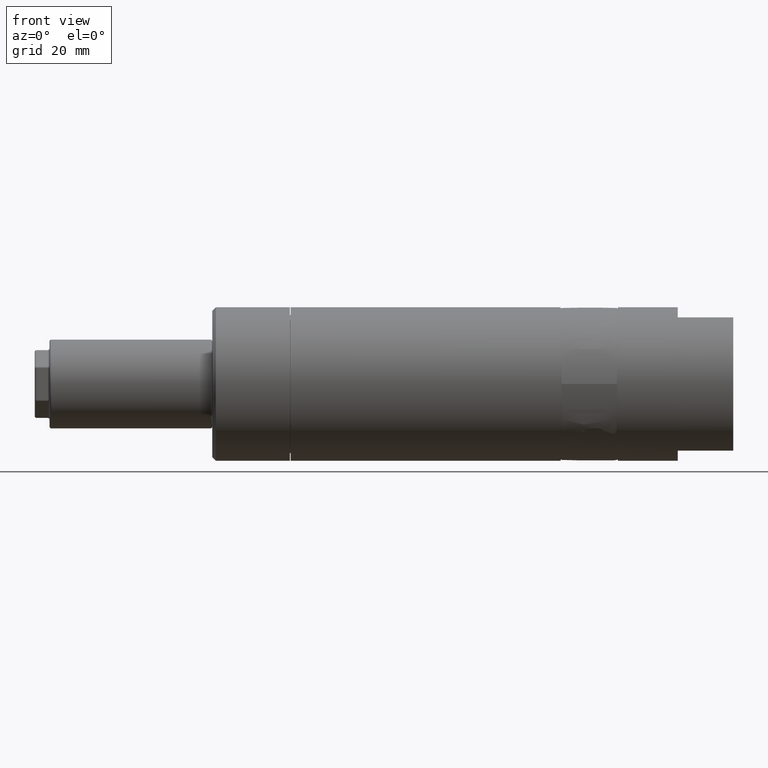
[diagram: clean part render]
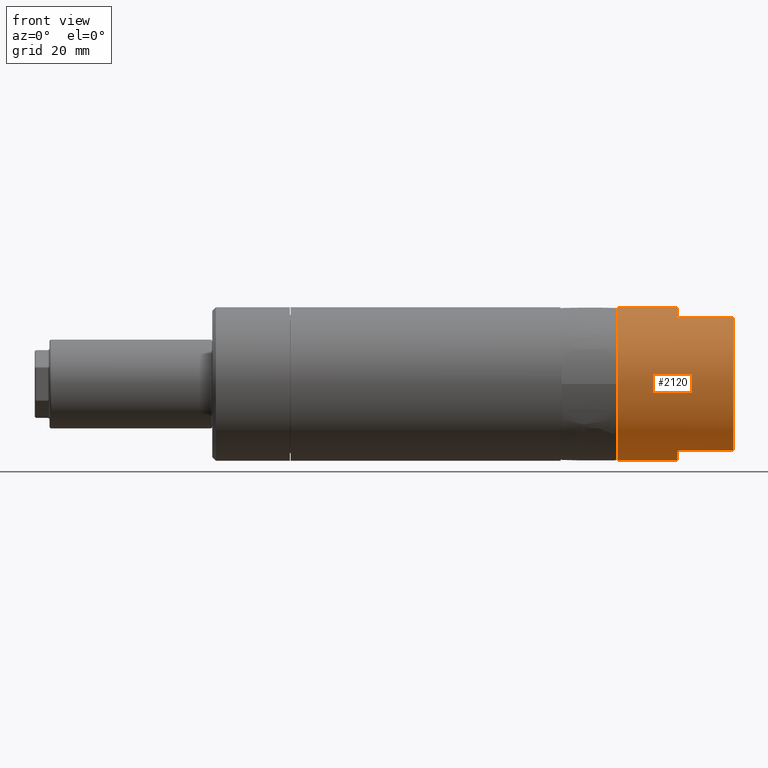
[diagram: same view with one face highlighted and labeled with its STEP entity id]
A machine part, front view. The second image highlights one B-rep face of the part: STEP entity #2120.
In plain terms, the highlighted cylindrical surface (partial cylindrical patch) has radius 20.75 mm, axis along (1, 0, 0).
Its self-contained STEP definition (entity closure, byte-faithful):
#207 = VERTEX_POINT ( 'NONE', #6639 ) ;
#294 = CARTESIAN_POINT ( 'NONE',  ( 0.0000000000000000000, -10.32291141103128000, 18.00000000000000000 ) ) ;
#388 = CARTESIAN_POINT ( 'NONE',  ( -15.00000000000000000, 0.0000000000000000000, -20.75000000000000000 ) ) ;
#656 = EDGE_CURVE ( 'NONE', #1961, #207, #5594, .T. ) ;
#677 = CARTESIAN_POINT ( 'NONE',  ( 0.0000000000000000000, 0.0000000000000000000, -20.75000000000000000 ) ) ;
#751 = DIRECTION ( 'NONE',  ( 1.000000000000000000, 0.0000000000000000000, 0.0000000000000000000 ) ) ;
#801 = EDGE_LOOP ( 'NONE', ( #10159, #3599, #3456, #2877, #8012, #6029, #17627, #15736 ) ) ;
#1194 = CARTESIAN_POINT ( 'NONE',  ( -31.19999999999999900, 2.541142108230757900E-015, 20.75000000000000000 ) ) ;
#1614 = AXIS2_PLACEMENT_3D ( 'NONE', #17934, #4783, #15066 ) ;
#1694 = CARTESIAN_POINT ( 'NONE',  ( -15.00000000000000000, 0.0000000000000000000, 0.0000000000000000000 ) ) ;
#1750 = DIRECTION ( 'NONE',  ( -1.000000000000000000, -0.0000000000000000000, -0.0000000000000000000 ) ) ;
#1763 = CARTESIAN_POINT ( 'NONE',  ( 0.0000000000000000000, 0.0000000000000000000, 0.0000000000000000000 ) ) ;
#1961 = VERTEX_POINT ( 'NONE', #1194 ) ;
#2120 = ADVANCED_FACE ( 'NONE', ( #9309 ), #13135, .T. ) ;
#2209 = CARTESIAN_POINT ( 'NONE',  ( -15.00000000000000000, -10.32291141103128000, -18.00000000000000000 ) ) ;
#2396 = CARTESIAN_POINT ( 'NONE',  ( -15.00000000000000000, -10.32291141103128000, 18.00000000000000000 ) ) ;
#2819 = AXIS2_PLACEMENT_3D ( 'NONE', #1694, #16228, #17700 ) ;
#2877 = ORIENTED_EDGE ( 'NONE', *, *, #11415, .T. ) ;
#3142 = EDGE_CURVE ( 'NONE', #1961, #11486, #15334, .T. ) ;
#3171 = VERTEX_POINT ( 'NONE', #2396 ) ;
#3456 = ORIENTED_EDGE ( 'NONE', *, *, #8139, .T. ) ;
#3599 = ORIENTED_EDGE ( 'NONE', *, *, #3142, .T. ) ;
#4144 = CIRCLE ( 'NONE', #4758, 20.75000000000000000 ) ;
#4179 = VECTOR ( 'NONE', #10794, 1000.000000000000000 ) ;
#4495 = DIRECTION ( 'NONE',  ( 0.0000000000000000000, 0.0000000000000000000, -1.000000000000000000 ) ) ;
#4679 = DIRECTION ( 'NONE',  ( 1.000000000000000000, 0.0000000000000000000, 0.0000000000000000000 ) ) ;
#4758 = AXIS2_PLACEMENT_3D ( 'NONE', #1763, #14709, #4495 ) ;
#4783 = DIRECTION ( 'NONE',  ( -1.000000000000000000, -0.0000000000000000000, -0.0000000000000000000 ) ) ;
#4888 = CARTESIAN_POINT ( 'NONE',  ( -31.19999999999999900, 0.0000000000000000000, 0.0000000000000000000 ) ) ;
#5480 = AXIS2_PLACEMENT_3D ( 'NONE', #7601, #4679, #12189 ) ;
#5594 = LINE ( 'NONE', #16384, #11002 ) ;
#5872 = LINE ( 'NONE', #12983, #10607 ) ;
#5903 = EDGE_CURVE ( 'NONE', #3171, #207, #12865, .T. ) ;
#6029 = ORIENTED_EDGE ( 'NONE', *, *, #11418, .F. ) ;
#6032 = CARTESIAN_POINT ( 'NONE',  ( 0.0000000000000000000, -10.32291141103128000, -18.00000000000000000 ) ) ;
#6548 = VERTEX_POINT ( 'NONE', #2209 ) ;
#6639 = CARTESIAN_POINT ( 'NONE',  ( -15.00000000000000000, 2.541142108230757900E-015, 20.75000000000000000 ) ) ;
#7234 = VECTOR ( 'NONE', #1750, 1000.000000000000000 ) ;
#7441 = DIRECTION ( 'NONE',  ( 1.000000000000000000, 0.0000000000000000000, 0.0000000000000000000 ) ) ;
#7601 = CARTESIAN_POINT ( 'NONE',  ( 0.0000000000000000000, 0.0000000000000000000, 0.0000000000000000000 ) ) ;
#7994 = CIRCLE ( 'NONE', #2819, 20.75000000000000000 ) ;
#8012 = ORIENTED_EDGE ( 'NONE', *, *, #10275, .T. ) ;
#8139 = EDGE_CURVE ( 'NONE', #11486, #16062, #12323, .T. ) ;
#9309 = FACE_OUTER_BOUND ( 'NONE', #801, .T. ) ;
#9924 = EDGE_CURVE ( 'NONE', #15770, #3171, #13974, .T. ) ;
#10159 = ORIENTED_EDGE ( 'NONE', *, *, #656, .F. ) ;
#10275 = EDGE_CURVE ( 'NONE', #6548, #18228, #5872, .T. ) ;
#10607 = VECTOR ( 'NONE', #7441, 1000.000000000000000 ) ;
#10794 = DIRECTION ( 'NONE',  ( 1.000000000000000000, 0.0000000000000000000, 0.0000000000000000000 ) ) ;
#11002 = VECTOR ( 'NONE', #12213, 1000.000000000000000 ) ;
#11415 = EDGE_CURVE ( 'NONE', #16062, #6548, #7994, .T. ) ;
#11418 = EDGE_CURVE ( 'NONE', #15770, #18228, #4144, .T. ) ;
#11486 = VERTEX_POINT ( 'NONE', #11929 ) ;
#11929 = CARTESIAN_POINT ( 'NONE',  ( -31.19999999999999900, 0.0000000000000000000, -20.75000000000000000 ) ) ;
#12189 = DIRECTION ( 'NONE',  ( 0.0000000000000000000, 0.0000000000000000000, -1.000000000000000000 ) ) ;
#12213 = DIRECTION ( 'NONE',  ( 1.000000000000000000, 0.0000000000000000000, 0.0000000000000000000 ) ) ;
#12323 = LINE ( 'NONE', #677, #4179 ) ;
#12865 = CIRCLE ( 'NONE', #1614, 20.75000000000000000 ) ;
#12983 = CARTESIAN_POINT ( 'NONE',  ( 0.0000000000000000000, -10.32291141103128000, -18.00000000000000000 ) ) ;
#13135 = CYLINDRICAL_SURFACE ( 'NONE', #5480, 20.75000000000000000 ) ;
#13974 = LINE ( 'NONE', #14819, #7234 ) ;
#14709 = DIRECTION ( 'NONE',  ( 1.000000000000000000, 0.0000000000000000000, 0.0000000000000000000 ) ) ;
#14819 = CARTESIAN_POINT ( 'NONE',  ( 0.0000000000000000000, -10.32291141103128000, 18.00000000000000000 ) ) ;
#14975 = DIRECTION ( 'NONE',  ( 0.0000000000000000000, 0.0000000000000000000, -1.000000000000000000 ) ) ;
#15066 = DIRECTION ( 'NONE',  ( 0.0000000000000000000, 2.664535259100375700E-015, -1.000000000000000000 ) ) ;
#15143 = AXIS2_PLACEMENT_3D ( 'NONE', #4888, #751, #14975 ) ;
#15334 = CIRCLE ( 'NONE', #15143, 20.75000000000000000 ) ;
#15736 = ORIENTED_EDGE ( 'NONE', *, *, #5903, .T. ) ;
#15770 = VERTEX_POINT ( 'NONE', #294 ) ;
#16062 = VERTEX_POINT ( 'NONE', #388 ) ;
#16228 = DIRECTION ( 'NONE',  ( -1.000000000000000000, -0.0000000000000000000, -0.0000000000000000000 ) ) ;
#16384 = CARTESIAN_POINT ( 'NONE',  ( 0.0000000000000000000, 2.541142108230757900E-015, 20.75000000000000000 ) ) ;
#17627 = ORIENTED_EDGE ( 'NONE', *, *, #9924, .T. ) ;
#17700 = DIRECTION ( 'NONE',  ( 0.0000000000000000000, 0.0000000000000000000, -1.000000000000000000 ) ) ;
#17934 = CARTESIAN_POINT ( 'NONE',  ( -15.00000000000000000, 0.0000000000000000000, 0.0000000000000000000 ) ) ;
#18228 = VERTEX_POINT ( 'NONE', #6032 ) ;